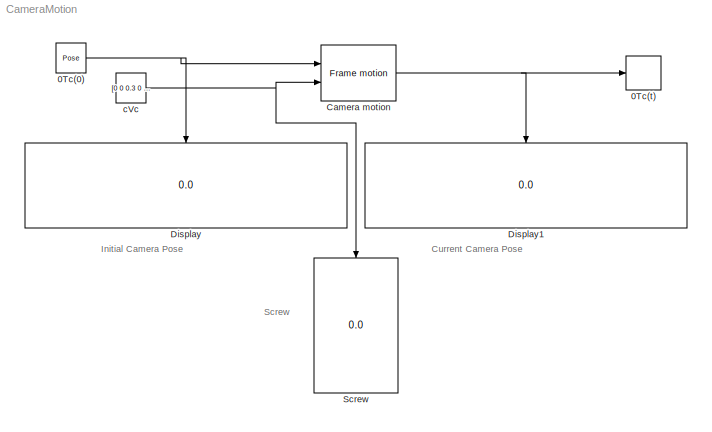
MODEL CameraMotion
KIND model
BLOCK [Reference] 0Tc(0)  REF=vs/Pose/Pose  (lib defined in slx_df1018bcac68)
  Ports = [0, 1]
  SID = 1
  SourceBlock = vs/Pose/Pose
  phi = 0
  psi = 0
  r = RPY
  theta = 0
  x = 0
  y = 0
  z = -1.5
BLOCK [ToWorkspace] 0Tc(t)
  MaxDataPoints = inf
  Ports = [1]
  SID = 2
  SampleTime = -1
  SaveFormat = Structure With Time
  VariableName = T0c
BLOCK [Reference] Camera motion  REF=vs/Pose/Frame motion  (lib defined in slx_df1018bcac68)
  Ports = [2, 1]
  RTWFcnNameOpts = Auto
  RTWFileNameOpts = Auto
  RTWSystemCode = Auto
  SID = 3
  ShowPortLabels = on
  SourceBlock = vs/Pose/Frame motion
  SourceType = SubSystem
  TreatAsAtomicUnit = off
BLOCK [Display] Display
  Decimation = 1
  Ports = [1]
  SID = 4
BLOCK [Display] Display1
  Decimation = 1
  Ports = [1]
  SID = 5
BLOCK [Display] Screw 
  Decimation = 1
  Ports = [1]
  SID = 6
BLOCK [Constant] cVc
  SID = 7
  Value = [0 0 0.3 0 0 0]'
  VectorParams1D = off
ANNOTATION (root): Current Camera Pose
ANNOTATION (root): Initial Camera Pose
ANNOTATION (root): Screw
NET 0Tc(0):1 -> Camera motion:1, Display:1
NET Camera motion:1 -> 0Tc(t):1, Display1:1
NET cVc:1 -> Camera motion:2, Screw :1
note: NET lines group one-source signal fan-out (src -> all destinations, sorted); 1:1 wires keep LINE
